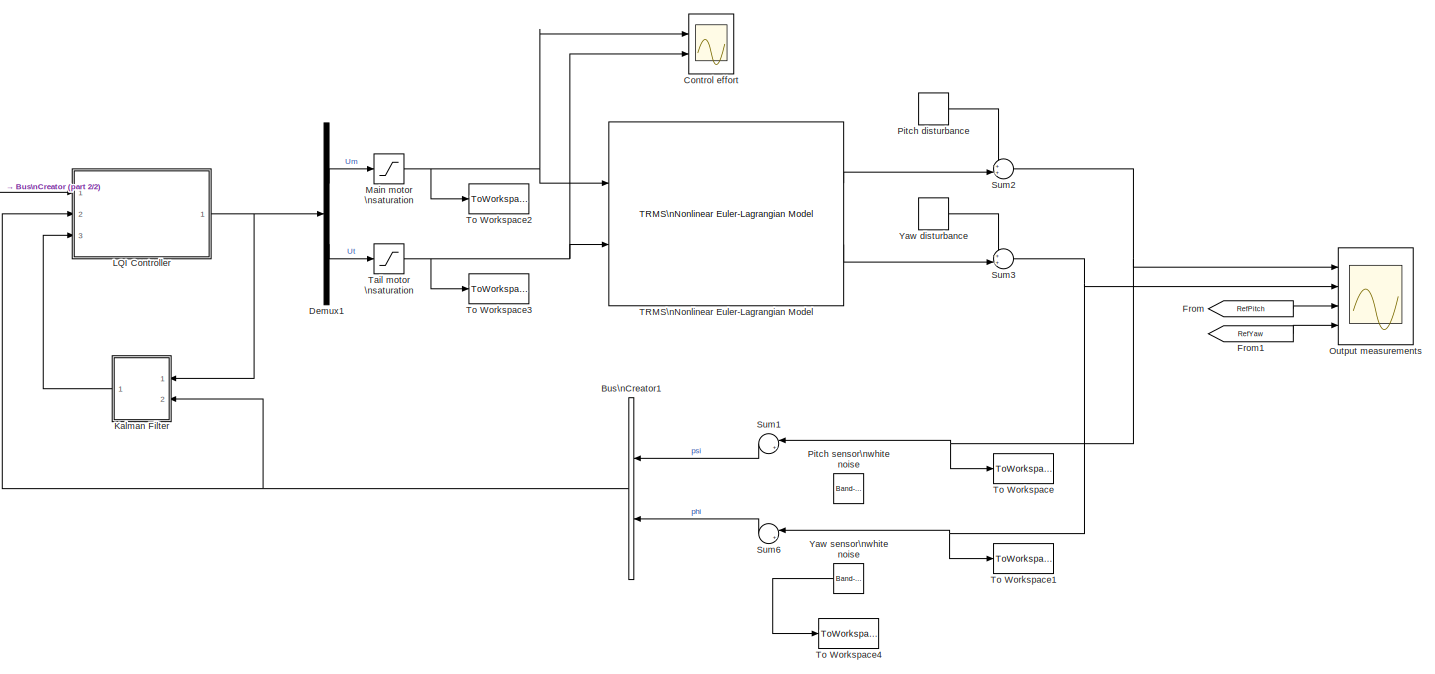
[diagram: root canvas - part 1/2, most of the canvas]
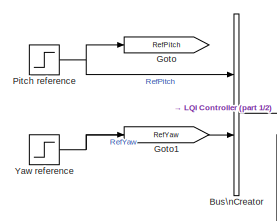
[diagram: root canvas - part 2/2, top left region]
MODEL sim_LQI_R2009a
KIND model
BLOCK [BusCreator] Bus\nCreator
  DisplayOption = bar
  Inputs = 2
  Ports = [2, 1]
BLOCK [BusCreator] Bus\nCreator1
  DisplayOption = bar
  Inputs = 2
  Ports = [2, 1]
BLOCK [Scope] Control effort
  DataFormat = StructureWithTime
  Decimation = 1
  Grid = on
  LimitDataPoints = off
  MaxDataPoints = 5000
  NumInputPorts = 2
  Ports = [2]
  SampleInput = off
  SampleTime = -1
  SaveName = ScopeData1
  SaveToWorkspace = off
  TickLabels = OneTimeTick
  TimeRange = auto
  YMax = 3.125~5
  YMin = -3.125~-5
  ZoomMode = on
BLOCK [Demux] Demux1
  DisplayOption = bar
  Outputs = 2
  Ports = [1, 2]
BLOCK [From] From
  GotoTag = RefPitch
BLOCK [From] From1
  GotoTag = RefYaw
BLOCK [Goto] Goto
  GotoTag = RefPitch
BLOCK [Goto] Goto1
  GotoTag = RefYaw
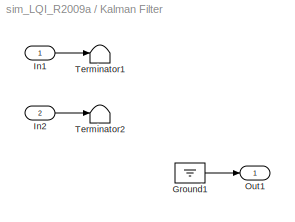
BLOCK [SubSystem] Kalman Filter
  Description = Replaced Block
  MaskDescription = This block has been replaced with an empty subsystem because it used functionality that is unavailable in Simulink R2009a.
  MaskDisplay = fprintf('Replaced: %s\\n','ctrlSharedLib/Kalman Filter')
  MaskIconFrame = on
  MaskIconOpaque = on
  MaskIconRotate = none
  MaskIconUnits = autoscale
  MaskPortRotate = default
  MaskType = Replaced Block
  Ports = [2, 1]
  RequestExecContextInheritance = off
BLOCK [Ground] Kalman Filter/Ground1
BLOCK [Inport] Kalman Filter/In1
  IconDisplay = Port number
BLOCK [Inport] Kalman Filter/In2
  IconDisplay = Port number
  Port = 2
BLOCK [Outport] Kalman Filter/Out1
  IconDisplay = Port number
BLOCK [Terminator] Kalman Filter/Terminator1
BLOCK [Terminator] Kalman Filter/Terminator2
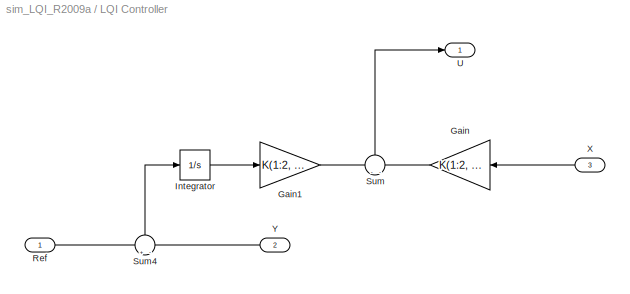
BLOCK [SubSystem] LQI Controller
  FunctionWithSeparateData = off
  MaskHideContents = off
  MinAlgLoopOccurrences = off
  Opaque = off
  Ports = [3, 1]
  PropExecContextOutsideSubsystem = off
  RTWSystemCode = Auto
  RequestExecContextInheritance = off
BLOCK [Gain] LQI Controller/Gain
  Gain = K(1:2, 1:6)
  Multiplication = Matrix(K*u) (u vector)
  OutDataTypeMode = Inherit via internal rule
  OutDataTypeStr = Inherit: Inherit via internal rule
  ParamDataTypeStr = Inherit: Inherit via internal rule
  ParameterDataTypeMode = Inherit via internal rule
  SaturateOnIntegerOverflow = off
BLOCK [Gain] LQI Controller/Gain1
  Gain = K(1:2, 7:8)
  Multiplication = Matrix(K*u) (u vector)
  OutDataTypeMode = Inherit via internal rule
  OutDataTypeStr = Inherit: Inherit via internal rule
  ParamDataTypeStr = Inherit: Inherit via internal rule
  ParameterDataTypeMode = Inherit via internal rule
  SaturateOnIntegerOverflow = off
BLOCK [Integrator] LQI Controller/Integrator
  InitialCondition = [0, 0]
  Ports = [1, 1]
BLOCK [Inport] LQI Controller/Ref
  IconDisplay = Port number
BLOCK [Sum] LQI Controller/Sum
  IconShape = round
  InputSameDT = off
  Inputs = -|-
  OutDataTypeMode = Inherit via internal rule
  OutDataTypeStr = Inherit: Inherit via internal rule
  Ports = [2, 1]
  SaturateOnIntegerOverflow = off
BLOCK [Sum] LQI Controller/Sum4
  IconShape = round
  InputSameDT = off
  Inputs = +|-
  OutDataTypeMode = Inherit via internal rule
  OutDataTypeStr = Inherit: Inherit via internal rule
  Ports = [2, 1]
  SaturateOnIntegerOverflow = off
BLOCK [Outport] LQI Controller/U
  IconDisplay = Port number
BLOCK [Inport] LQI Controller/X
  IconDisplay = Port number
  Port = 3
BLOCK [Inport] LQI Controller/Y
  IconDisplay = Port number
  Port = 2
BLOCK [Saturate] Main motor \nsaturation
  LowerLimit = -2.5
  UpperLimit = 2.5
BLOCK [Scope] Output measurements
  DataFormat = StructureWithTime
  Decimation = 1
  Grid = on
  LimitDataPoints = off
  MaxDataPoints = 5000
  NumInputPorts = 4
  Ports = [4]
  SampleInput = off
  SampleTime = -1
  SaveName = ScopeData1
  SaveToWorkspace = off
  TickLabels = OneTimeTick
  TimeRange = auto
  YMax = 0.2639~5~5~5
  YMin = -1.44131~-5~-5~-5
  ZoomMode = on
BLOCK [DiscretePulseGenerator] Pitch disturbance
  Amplitude = 0.1
  Period = 100
  PhaseDelay = 80
  Ports = [0, 1]
  PulseType = Time based
  PulseWidth = 0.1
BLOCK [Step] Pitch reference
  After = 0
  SampleTime = 0
  Time = 100
BLOCK [Reference] Pitch sensor\nwhite noise  REF=simulink/Sources/Band-Limited\nWhite Noise
  Cov = [0.000000001]
  Ports = [0, 1]
  SourceBlock = simulink/Sources/Band-Limited\nWhite Noise
  SourceType = Band-Limited White Noise.
  Ts = 0.001
  VectorParams1D = on
  seed = [23341]
BLOCK [Sum] Sum1
  IconShape = round
  InputSameDT = off
  Inputs = |++
  OutDataTypeMode = Inherit via internal rule
  OutDataTypeStr = Inherit: Inherit via internal rule
  Ports = [2, 1]
  SaturateOnIntegerOverflow = off
BLOCK [Sum] Sum2
  IconShape = round
  InputSameDT = off
  Inputs = ++|
  OutDataTypeMode = Inherit via internal rule
  OutDataTypeStr = Inherit: Inherit via internal rule
  Ports = [2, 1]
  SaturateOnIntegerOverflow = off
BLOCK [Sum] Sum3
  IconShape = round
  InputSameDT = off
  Inputs = ++|
  OutDataTypeMode = Inherit via internal rule
  OutDataTypeStr = Inherit: Inherit via internal rule
  Ports = [2, 1]
  SaturateOnIntegerOverflow = off
BLOCK [Sum] Sum6
  IconShape = round
  InputSameDT = off
  Inputs = |++
  OutDataTypeMode = Inherit via internal rule
  OutDataTypeStr = Inherit: Inherit via internal rule
  Ports = [2, 1]
  SaturateOnIntegerOverflow = off
BLOCK [Reference] TRMS\nNonlinear Euler-Lagrangian Model  REF=lib_Lagrangian_Model_Nonlinear/TRMS\nNonlinear Euler-Lagrangian Model
  Phi_dot_zero = 0
  Phi_zero = 0
  Ports = [2, 2]
  Psi_dot_zero = 0
  Psi_zero = 0
  SourceBlock = lib_Lagrangian_Model_Nonlinear/TRMS\nNonlinear Euler-Lagrangian Model
  SourceType = Physical model
  Wm_zero = 0
  Wt_zero = 0
BLOCK [Saturate] Tail motor \nsaturation
  LowerLimit = -2.5
  UpperLimit = 2.5
BLOCK [ToWorkspace] To Workspace
  FixptAsFi = on
  MaxDataPoints = inf
  Ports = [1]
  SampleTime = -1
  SaveFormat = Structure With Time
  VariableName = sim_psi
BLOCK [ToWorkspace] To Workspace1
  FixptAsFi = on
  MaxDataPoints = inf
  Ports = [1]
  SampleTime = -1
  SaveFormat = Structure With Time
  VariableName = sim_phi
BLOCK [ToWorkspace] To Workspace2
  FixptAsFi = on
  MaxDataPoints = inf
  Ports = [1]
  SampleTime = -1
  SaveFormat = Structure With Time
  VariableName = sim_um
BLOCK [ToWorkspace] To Workspace3
  FixptAsFi = on
  MaxDataPoints = inf
  Ports = [1]
  SampleTime = -1
  SaveFormat = Structure With Time
  VariableName = sim_ut
BLOCK [ToWorkspace] To Workspace4
  FixptAsFi = on
  MaxDataPoints = inf
  Ports = [1]
  SampleTime = -1
  SaveFormat = Structure With Time
  VariableName = sim_noise
BLOCK [DiscretePulseGenerator] Yaw disturbance
  Amplitude = 0.1
  Period = 100
  PhaseDelay = 120
  Ports = [0, 1]
  PulseType = Time based
  PulseWidth = 0.1
BLOCK [Step] Yaw reference
  After = 0
  SampleTime = 0
  Time = 140
BLOCK [Reference] Yaw sensor\nwhite noise  REF=simulink/Sources/Band-Limited\nWhite Noise
  Cov = [0.000000001]
  Ports = [0, 1]
  SourceBlock = simulink/Sources/Band-Limited\nWhite Noise
  SourceType = Band-Limited White Noise.
  Ts = 0.001
  VectorParams1D = on
  seed = [23341]
NET Bus\nCreator1:1 -> Kalman Filter:2, LQI Controller:2
LINE Bus\nCreator:1 -> LQI Controller:1
LINE Demux1:1 -> Main motor \nsaturation:1
LINE Demux1:2 -> Tail motor \nsaturation:1
LINE From1:1 -> Output measurements:4
LINE From:1 -> Output measurements:3
LINE Kalman Filter/Ground1:1 -> Kalman Filter/Out1:1
LINE Kalman Filter/In1:1 -> Kalman Filter/Terminator1:1
LINE Kalman Filter/In2:1 -> Kalman Filter/Terminator2:1
LINE Kalman Filter:1 -> LQI Controller:3
LINE LQI Controller/Gain1:1 -> LQI Controller/Sum:1
LINE LQI Controller/Gain:1 -> LQI Controller/Sum:2
LINE LQI Controller/Integrator:1 -> LQI Controller/Gain1:1
LINE LQI Controller/Ref:1 -> LQI Controller/Sum4:1
LINE LQI Controller/Sum4:1 -> LQI Controller/Integrator:1
LINE LQI Controller/Sum:1 -> LQI Controller/U:1
LINE LQI Controller/X:1 -> LQI Controller/Gain:1
LINE LQI Controller/Y:1 -> LQI Controller/Sum4:2
NET LQI Controller:1 -> Demux1:1, Kalman Filter:1
NET Main motor \nsaturation:1 -> Control effort:1, TRMS\nNonlinear Euler-Lagrangian Model:1, To Workspace2:1
LINE Pitch disturbance:1 -> Sum2:1
NET Pitch reference:1 -> Bus\nCreator:1, Goto:1
LINE Sum1:1 -> Bus\nCreator1:1
NET Sum2:1 -> Output measurements:1, Sum1:1, To Workspace:1
NET Sum3:1 -> Output measurements:2, Sum6:1, To Workspace1:1
LINE Sum6:1 -> Bus\nCreator1:2
LINE TRMS\nNonlinear Euler-Lagrangian Model:1 -> Sum2:2
LINE TRMS\nNonlinear Euler-Lagrangian Model:2 -> Sum3:2
NET Tail motor \nsaturation:1 -> Control effort:2, TRMS\nNonlinear Euler-Lagrangian Model:2, To Workspace3:1
LINE Yaw disturbance:1 -> Sum3:1
NET Yaw reference:1 -> Bus\nCreator:2, Goto1:1
LINE Yaw sensor\nwhite noise:1 -> To Workspace4:1
note: NET lines group one-source signal fan-out (src -> all destinations, sorted); 1:1 wires keep LINE
